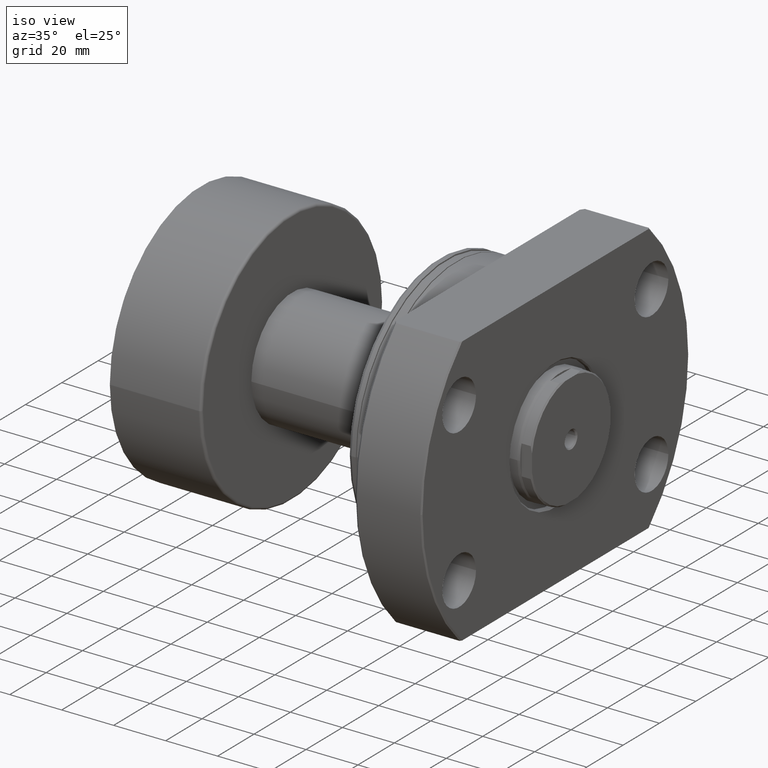
[diagram: clean part render]
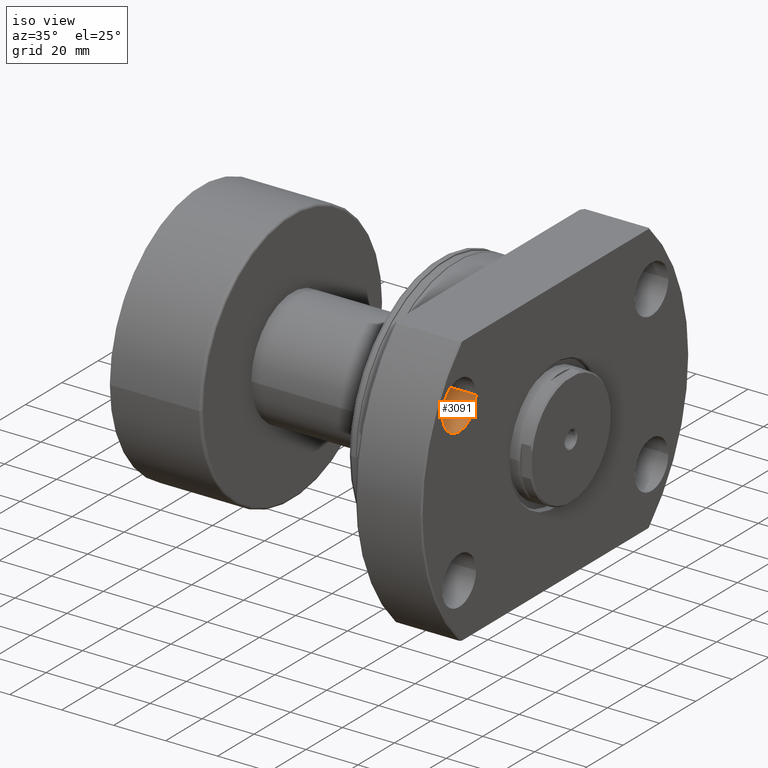
[diagram: same view with one face highlighted and labeled with its STEP entity id]
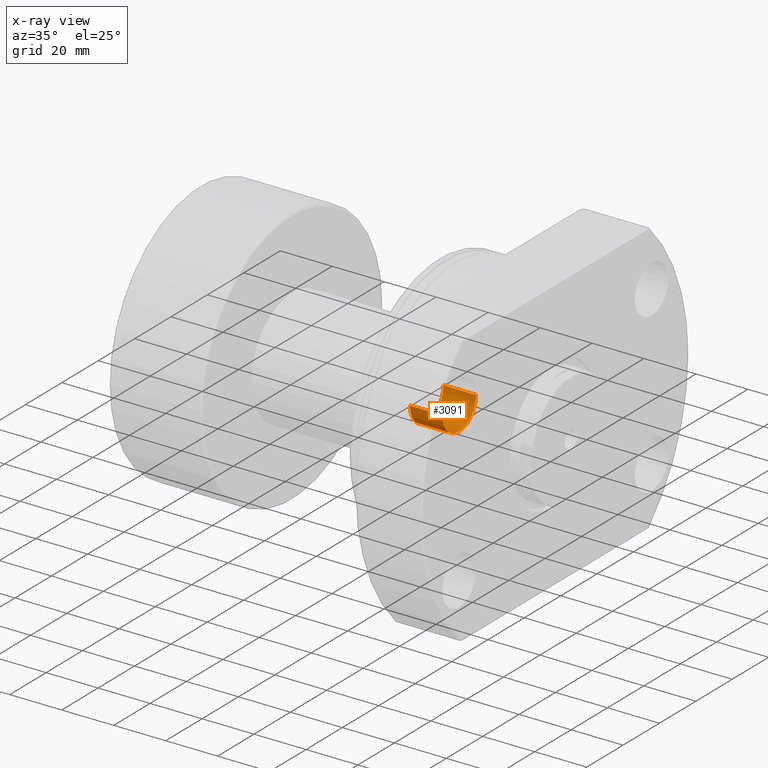
[diagram: x-ray of the same camera — body ghosted, the highlighted face saturated]
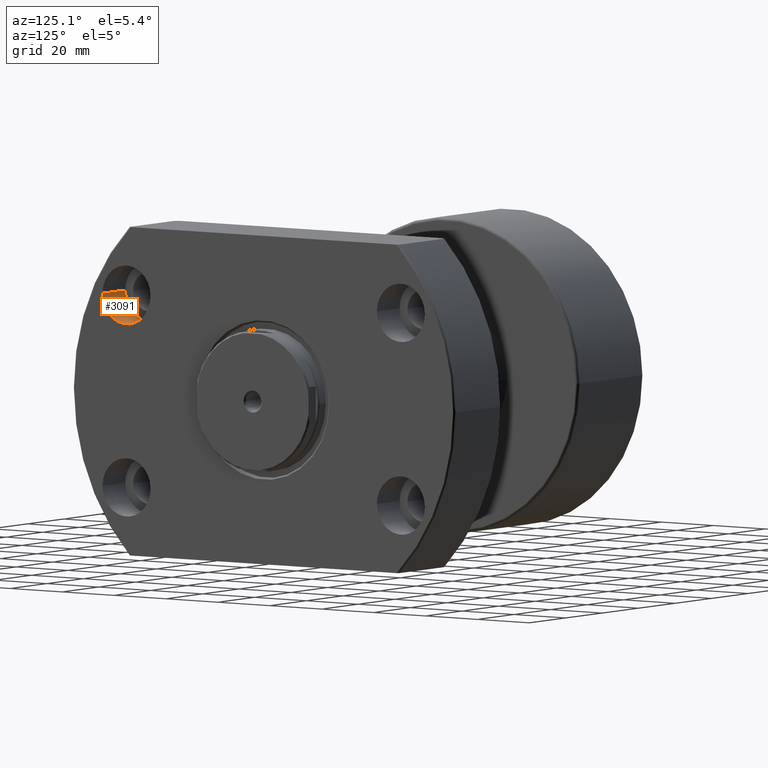
[diagram: same view with one face highlighted and labeled with its STEP entity id]
A machine part, iso view. The second image highlights one B-rep face of the part: STEP entity #3091.
The next image is the same camera in x-ray: the body ghosted, the highlighted face saturated — about 0% of this face is hidden behind the body in this view.
A second angle (auxiliary view) of the same face is appended — the face is thin or edge-on in the first view.
In plain terms, the highlighted cylindrical surface (edge-blend (fillet) strip) has radius 9.25 mm, axis along (1, -0, 0).
Its self-contained STEP definition (entity closure, byte-faithful):
#61 = CARTESIAN_POINT ( 'NONE',  ( 44.49999999999819522, -62.10000000000128750, 30.50000000000000000 ) ) ;
#175 = DIRECTION ( 'NONE',  ( 1.000000000000000000, -2.888547605177540648E-14, 0.000000000000000000 ) ) ;
#190 = AXIS2_PLACEMENT_3D ( 'NONE', #1201, #175, #2147 ) ;
#217 = FACE_OUTER_BOUND ( 'NONE', #1926, .T. ) ;
#225 = VERTEX_POINT ( 'NONE', #61 ) ;
#249 = DIRECTION ( 'NONE',  ( 2.850572630794320387E-14, 1.000000000000000000, 0.000000000000000000 ) ) ;
#384 = DIRECTION ( 'NONE',  ( 1.000000000000000000, -2.886466111666351885E-14, -0.000000000000000000 ) ) ;
#397 = VECTOR ( 'NONE', #2739, 1000.000000000000000 ) ;
#514 = CYLINDRICAL_SURFACE ( 'NONE', #1658, 9.250000000000001776 ) ;
#589 = CARTESIAN_POINT ( 'NONE',  ( 44.49999999999873523, -43.60000000000128040, 30.50000000000000000 ) ) ;
#724 = DIRECTION ( 'NONE',  ( 1.000000000000000000, -2.886466111666351885E-14, -0.000000000000000000 ) ) ;
#733 = VERTEX_POINT ( 'NONE', #1320 ) ;
#736 = DIRECTION ( 'NONE',  ( 2.925587700025750053E-14, 1.000000000000000000, 0.000000000000000000 ) ) ;
#770 = CARTESIAN_POINT ( 'NONE',  ( 31.99999999999846167, -52.85000000000092513, 30.50000000000000000 ) ) ;
#930 = CARTESIAN_POINT ( 'NONE',  ( 31.99999999999872458, -43.60000000000092513, 30.50000000000000000 ) ) ;
#934 = LINE ( 'NONE', #930, #3052 ) ;
#973 = AXIS2_PLACEMENT_3D ( 'NONE', #1265, #1783, #736 ) ;
#1027 = CARTESIAN_POINT ( 'NONE',  ( 31.99999999999819522, -62.10000000000092513, 30.50000000000000000 ) ) ;
#1201 = CARTESIAN_POINT ( 'NONE',  ( 44.49999999999846523, -52.85000000000128750, 30.50000000000000000 ) ) ;
#1242 = EDGE_CURVE ( 'NONE', #225, #2778, #2781, .T. ) ;
#1249 = VERTEX_POINT ( 'NONE', #2875 ) ;
#1255 = ORIENTED_EDGE ( 'NONE', *, *, #3047, .F. ) ;
#1265 = CARTESIAN_POINT ( 'NONE',  ( 31.99999999999846167, -52.85000000000092513, 30.50000000000000000 ) ) ;
#1320 = CARTESIAN_POINT ( 'NONE',  ( 31.99999999999873168, -43.60000000000092513, 30.50000000000000000 ) ) ;
#1485 = LINE ( 'NONE', #1027, #397 ) ;
#1489 = CIRCLE ( 'NONE', #973, 9.250000000000001776 ) ;
#1562 = EDGE_CURVE ( 'NONE', #1249, #225, #1485, .T. ) ;
#1626 = EDGE_CURVE ( 'NONE', #733, #2778, #934, .T. ) ;
#1658 = AXIS2_PLACEMENT_3D ( 'NONE', #770, #724, #249 ) ;
#1783 = DIRECTION ( 'NONE',  ( 1.000000000000000000, -2.888547605177540648E-14, 0.000000000000000000 ) ) ;
#1872 = ORIENTED_EDGE ( 'NONE', *, *, #1242, .T. ) ;
#1926 = EDGE_LOOP ( 'NONE', ( #1255, #2288, #1872, #2180 ) ) ;
#2147 = DIRECTION ( 'NONE',  ( 2.925587700025750053E-14, 1.000000000000000000, 0.000000000000000000 ) ) ;
#2180 = ORIENTED_EDGE ( 'NONE', *, *, #1626, .F. ) ;
#2288 = ORIENTED_EDGE ( 'NONE', *, *, #1562, .T. ) ;
#2739 = DIRECTION ( 'NONE',  ( 1.000000000000000000, -2.886466111666351885E-14, -0.000000000000000000 ) ) ;
#2778 = VERTEX_POINT ( 'NONE', #589 ) ;
#2781 = CIRCLE ( 'NONE', #190, 9.250000000000001776 ) ;
#2875 = CARTESIAN_POINT ( 'NONE',  ( 31.99999999999818812, -62.10000000000092513, 30.50000000000000000 ) ) ;
#3047 = EDGE_CURVE ( 'NONE', #1249, #733, #1489, .T. ) ;
#3052 = VECTOR ( 'NONE', #384, 1000.000000000000000 ) ;
#3091 = ADVANCED_FACE ( 'NONE', ( #217 ), #514, .F. ) ;